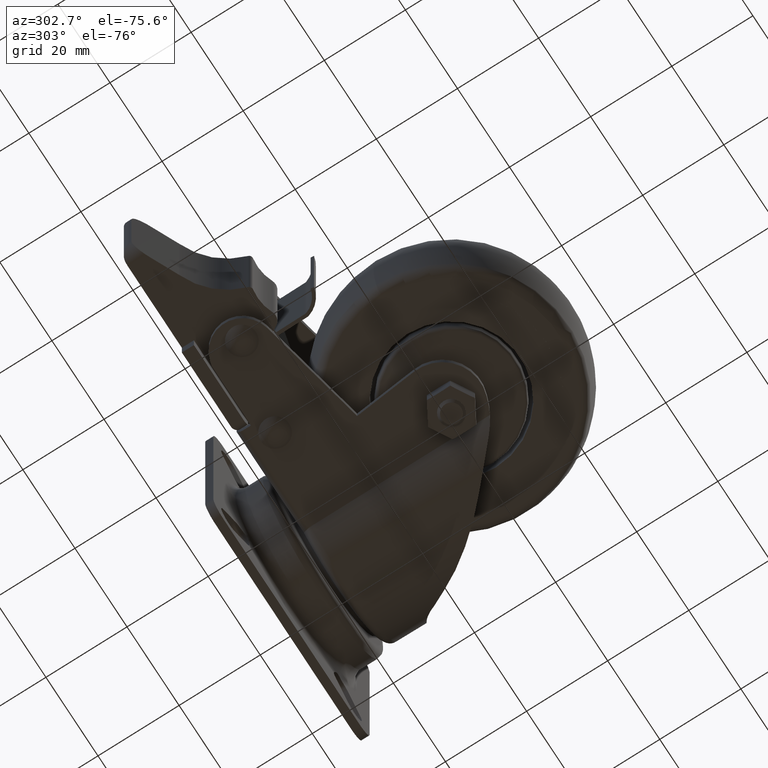
[diagram: clean part render]
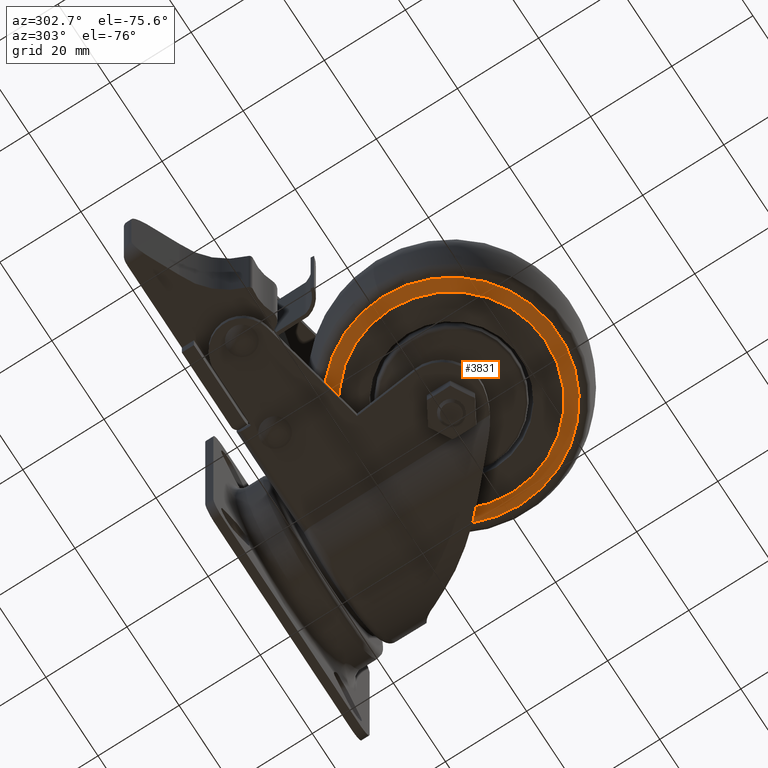
[diagram: same view with one face highlighted and labeled with its STEP entity id]
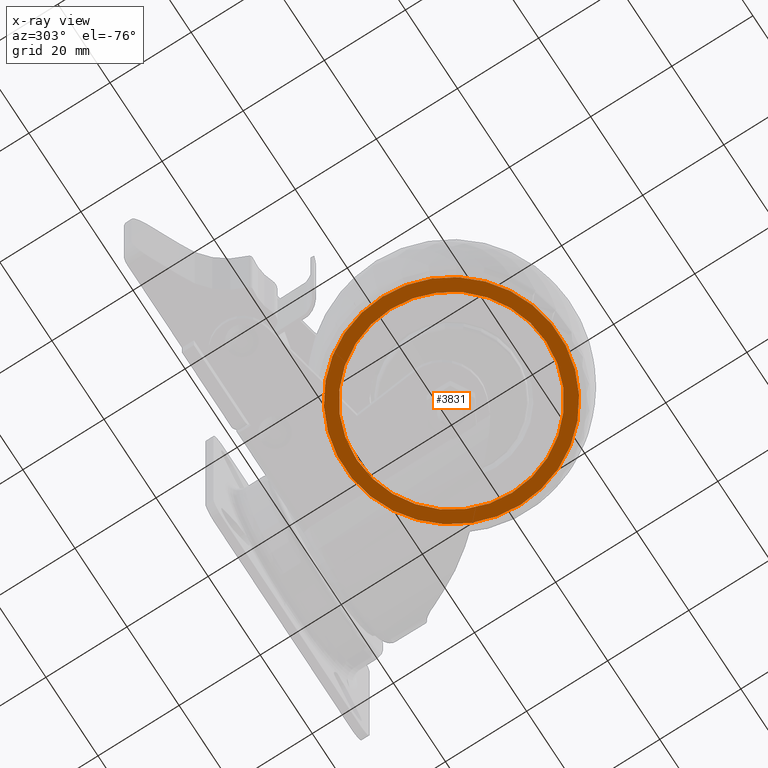
[diagram: x-ray of the same camera — body ghosted, the highlighted face saturated]
A machine part, auxiliary view. The second image highlights one B-rep face of the part: STEP entity #3831.
The next image is the same camera in x-ray: the body ghosted, the highlighted face saturated — about 0% of this face is hidden behind the body in this view.
In plain terms, the highlighted planar face has unit normal (0, 0, -1).
Its self-contained STEP definition (entity closure, byte-faithful):
#728=FACE_BOUND('',#1162,.T.);
#776=PLANE('',#4356);
#911=FACE_OUTER_BOUND('',#1161,.T.);
#1161=EDGE_LOOP('',(#2817));
#1162=EDGE_LOOP('',(#2818));
#1428=CIRCLE('',#4355,26.5);
#1429=CIRCLE('',#4357,23.3715);
#1724=VERTEX_POINT('',#6288);
#1725=VERTEX_POINT('',#6292);
#2134=EDGE_CURVE('',#1724,#1724,#1428,.T.);
#2135=EDGE_CURVE('',#1725,#1725,#1429,.T.);
#2817=ORIENTED_EDGE('',*,*,#2134,.F.);
#2818=ORIENTED_EDGE('',*,*,#2135,.T.);
#3831=ADVANCED_FACE('',(#911,#728),#776,.T.);
#4355=AXIS2_PLACEMENT_3D('',#6290,#5013,#5014);
#4356=AXIS2_PLACEMENT_3D('',#6291,#5015,#5016);
#4357=AXIS2_PLACEMENT_3D('',#6293,#5017,#5018);
#5013=DIRECTION('center_axis',(1.,0.,0.));
#5014=DIRECTION('ref_axis',(0.,0.,-1.));
#5015=DIRECTION('center_axis',(-1.,0.,0.));
#5016=DIRECTION('ref_axis',(0.,0.,1.));
#5017=DIRECTION('center_axis',(1.,0.,0.));
#5018=DIRECTION('ref_axis',(0.,0.,-1.));
#6288=CARTESIAN_POINT('',(2.,-3.24531401774049E-15,26.5));
#6290=CARTESIAN_POINT('Origin',(2.,0.,0.));
#6291=CARTESIAN_POINT('Origin',(2.,26.5,0.));
#6292=CARTESIAN_POINT('',(2.,-2.86218326662724E-15,23.3715));
#6293=CARTESIAN_POINT('Origin',(2.,0.,0.));